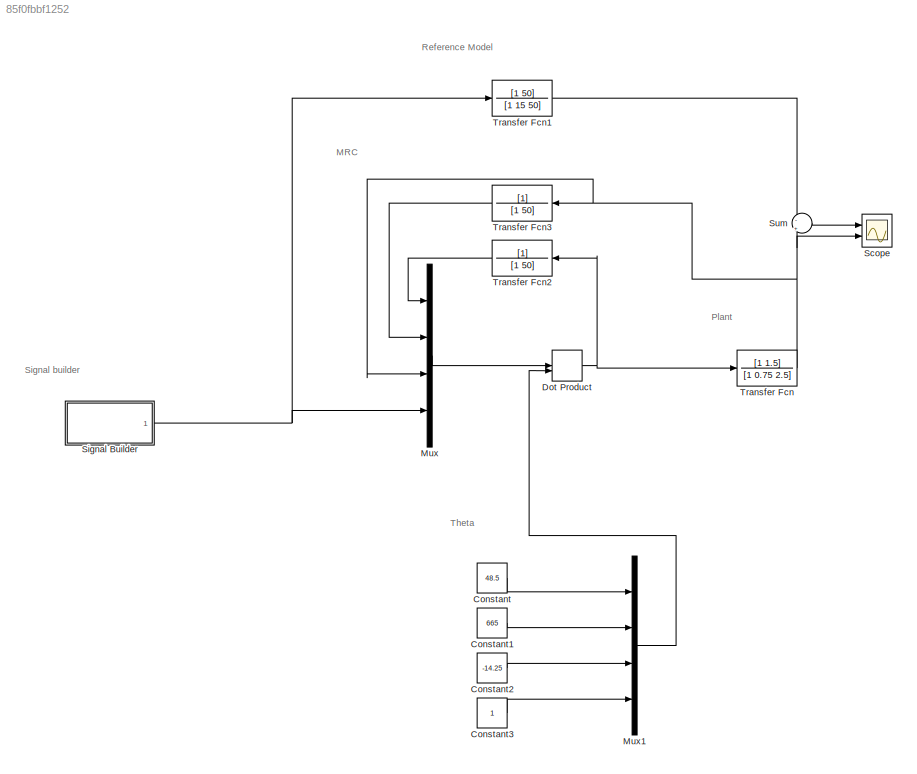
MODEL slx_85f0fbbf1252
KIND model
CONFIG AbsTol = auto
CONFIG EnableMultiTasking = off
CONFIG FixedStep = auto
CONFIG MaxStep = auto
CONFIG MinStep = auto
CONFIG RelTol = 1e-3
CONFIG SampleTimeConstraint = Unconstrained
CONFIG Solver = VariableStepAuto
CONFIG SolverName = VariableStepAuto
CONFIG StartTime = 0.0
CONFIG StopTime = 10.0
BLOCK [Constant] Constant
  Value = 48.5
BLOCK [Constant] Constant1
  Value = 665
BLOCK [Constant] Constant2
  Value = -14.25
BLOCK [Constant] Constant3
BLOCK [DotProduct] Dot Product
  OutDataTypeStr = Inherit: Inherit via internal rule
BLOCK [Mux] Mux
  DisplayOption = bar
  Ports = [4, 1]
BLOCK [Mux] Mux1
  DisplayOption = bar
  Ports = [4, 1]
BLOCK [Scope] Scope
  NumInputPorts = 2
  Ports = [2]
  ScopeSpecificationString = Simulink.scopes.TimeScopeBlockCfg('CurrentConfiguration', extmgr.ConfigurationSet(extmgr.Configuration('Core','General UI',true),extmgr.Configuration('Core','Source UI',true),extmgr.Configuration('Sources','WiredSimulink',true),extmgr.Configuration('Visuals','Time Domain',true,'SerializedDisplays',{struct('MinYLimReal','-0.125','MaxYLimReal','1.125','YLabelReal','','MinYLimMag','0.00000','MaxYLimM...<+1326ch>
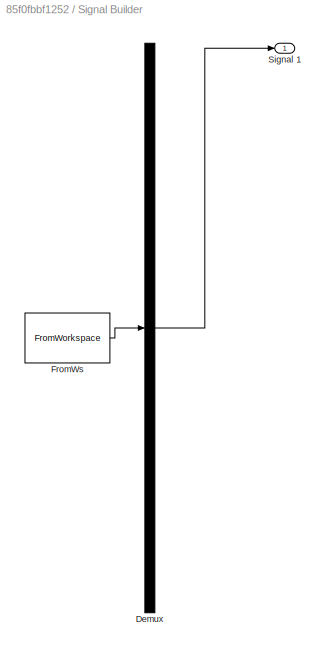
BLOCK [SubSystem] Signal Builder
  ClipboardFcn = sigbuilder_block('clipboard');
  CloseFcn = sigbuilder_block('close');
  ContinueFcn = sigbuilder_block('continue');
  CopyFcn = sigbuilder_block('copy');
  DeleteFcn = sigbuilder_block('delete');
  LoadFcn = sigbuilder_block('load');
  MaskHideContents = on
  ModelCloseFcn = sigbuilder_block('modelClose');
  NameChangeFcn = sigbuilder_block('namechange');
  OpenFcn = sigbuilder_block('open',[437.6 199.2 550.4 400 ]);
  PauseFcn = sigbuilder_block('pause');
  Ports = [0, 1]
  PreSaveFcn = sigbuilder_block('preSave');
  RequestExecContextInheritance = off
  StartFcn = sigbuilder_block('start');
  StopFcn = sigbuilder_block('stop');
  Tag = STV Subsys
  Variant = off
BLOCK [Demux] Signal Builder/Demux
  Outputs = 1
  Ports = [1, 1]
  Tag = STV Demux
BLOCK [FromWorkspace] Signal Builder/FromWs
  SampleTime = 0
  Tag = STV FromWs
  VariableName = tuvar
  ZeroCross = on
BLOCK [Outport] Signal Builder/Signal 1
  IconDisplay = Port number
  Tag = STV Outport
BLOCK [Sum] Sum
  IconShape = round
  InputSameDT = off
  Inputs = -|+
  OutDataTypeStr = Inherit: Inherit via internal rule
  Ports = [2, 1]
  SaturateOnIntegerOverflow = off
BLOCK [TransferFcn] Transfer Fcn
  ContinuousStateAttributes = 'Yp'
  Denominator = [1 0.75 2.5]
  Numerator = [1 1.5]
BLOCK [TransferFcn] Transfer Fcn1
  Denominator = [1 15 50]
  Numerator = [1 50]
BLOCK [TransferFcn] Transfer Fcn2
  Denominator = [1 50]
BLOCK [TransferFcn] Transfer Fcn3
  Denominator = [1 50]
ANNOTATION (root): MRC
ANNOTATION (root): Plant
ANNOTATION (root): Reference Model
ANNOTATION (root): Signal builder
ANNOTATION (root): Theta
LINE Constant1:1 -> Mux1:2
LINE Constant2:1 -> Mux1:3
LINE Constant3:1 -> Mux1:4
LINE Constant:1 -> Mux1:1
NET Dot Product:1 -> Transfer Fcn2:1, Transfer Fcn:1
LINE Mux1:1 -> Dot Product:2
LINE Mux:1 -> Dot Product:1
NET Signal Builder:1 -> Mux:4, Transfer Fcn1:1
LINE Sum:1 -> Scope:1
LINE Transfer Fcn1:1 -> Sum:1
LINE Transfer Fcn2:1 -> Mux:1
LINE Transfer Fcn3:1 -> Mux:2
NET Transfer Fcn:1 -> Mux:3, Scope:2, Sum:2, Transfer Fcn3:1
note: NET lines group one-source signal fan-out (src -> all destinations, sorted); 1:1 wires keep LINE
